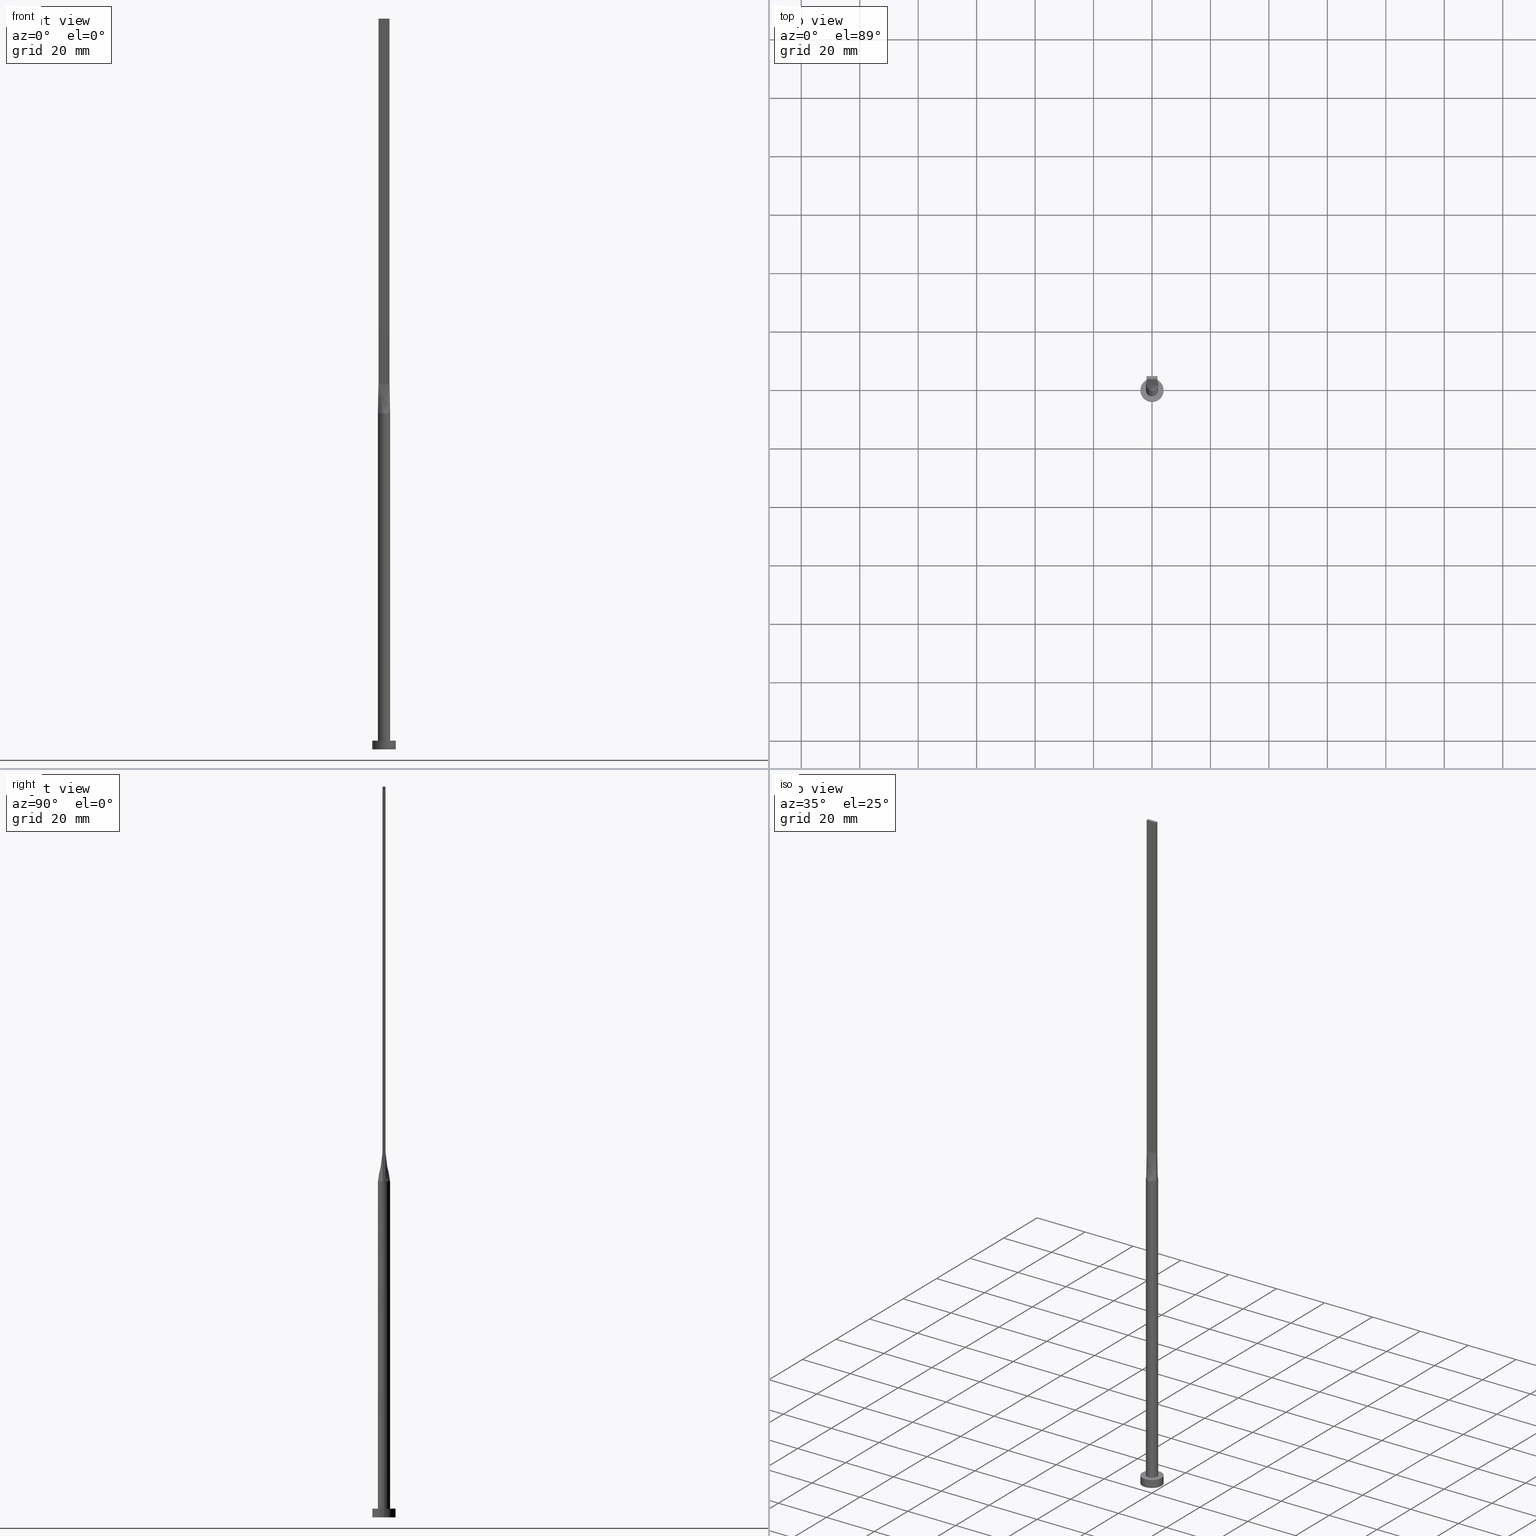
[diagram: canonical four-view strip — front | top / right | iso, engineering-drawing reading convention]
A machine part, canonical four-view strip (front | top / right | iso — engineering-drawing reading convention). The complete STEP part file that produces these views, byte-faithful:
ISO-10303-21;
HEADER;
FILE_DESCRIPTION (( 'STEP AP203' ),
    '1' );
FILE_NAME ('43e1.STEP',
    '2023-02-13T13:21:09',
    ( '' ),
    ( '' ),
    'SwSTEP 2.0',
    'SolidWorks 2019',
    '' );
FILE_SCHEMA (( 'CONFIG_CONTROL_DESIGN' ));
ENDSEC;

DATA;
#1 = CARTESIAN_POINT ( 'NONE',  ( -1.899999999999999911, -0.4999999999999995559, 250.0000000000000000 ) ) ;
#2 = LOCAL_TIME ( 14, 21, 9.000000000000000000, #46 ) ;
#3 = CARTESIAN_POINT ( 'NONE',  ( 0.000000000000000000, 0.000000000000000000, 0.000000000000000000 ) ) ;
#4 = CARTESIAN_POINT ( 'NONE',  ( 1.583333333333333037, -0.4999999999999997780, 125.0000000000000000 ) ) ;
#5 = CARTESIAN_POINT ( 'NONE',  ( 1.965428264125778535, 0.5172179642436265379, 120.0000000000000000 ) ) ;
#6 = CARTESIAN_POINT ( 'NONE',  ( 1.266666666666666829, -0.4999999999999997780, 125.0000000000000000 ) ) ;
#7 = LINE ( 'NONE', #61, #567 ) ;
#8 = DIRECTION ( 'NONE',  ( -1.000000000000000000, 0.000000000000000000, 0.000000000000000000 ) ) ;
#9 = PERSON_AND_ORGANIZATION ( #145, #337 ) ;
#10 = PRODUCT_DEFINITION ( 'NEZN�M�', '', #528, #549 ) ;
#11 = CARTESIAN_POINT ( 'NONE',  ( -0.2698109971861040179, 2.100000000000000089, 115.0000000000000000 ) ) ;
#12 = CARTESIAN_POINT ( 'NONE',  ( -1.899999999999999689, 0.5000000000000002220, 125.0000000000000000 ) ) ;
#13 = COORDINATED_UNIVERSAL_TIME_OFFSET ( 1, 0, .AHEAD. ) ;
#14 = PERSON_AND_ORGANIZATION_ROLE ( 'design_supplier' ) ;
#15 = DIRECTION ( 'NONE',  ( 1.000000000000000000, 0.000000000000000000, 0.000000000000000000 ) ) ;
#16 = CARTESIAN_POINT ( 'NONE',  ( -1.899999999999999467, 0.3333333333333335924, 125.0000000000000000 ) ) ;
#17 = CARTESIAN_POINT ( 'NONE',  ( 1.899999999999999467, 0.3333333333333335924, 125.0000000000000000 ) ) ;
#18 = APPLICATION_PROTOCOL_DEFINITION ( 'international standard', 'config_control_design', 1994, #548 ) ;
#19 = PERSON_AND_ORGANIZATION ( #145, #337 ) ;
#20 = ORIENTED_EDGE ( 'NONE', *, *, #344, .T. ) ;
#21 = ORIENTED_EDGE ( 'NONE', *, *, #353, .F. ) ;
#22 = B_SPLINE_SURFACE_WITH_KNOTS ( 'NONE', 3, 1, ( 
 ( #308, #264 ),
 ( #328, #72 ),
 ( #558, #405 ),
 ( #240, #236 ),
 ( #415, #17 ),
 ( #196, #75 ) ),
 .UNSPECIFIED., .F., .F., .F.,
 ( 4, 2, 4 ),
 ( 2, 2 ),
 ( 0.000000000000000000, 0.5000000000000000000, 1.000000000000000000 ),
 ( 0.000000000000000000, 1.000000000000000000 ),
 .UNSPECIFIED. ) ;
#23 = EDGE_LOOP ( 'NONE', ( #112, #20 ) ) ;
#24 = VECTOR ( 'NONE', #455, 1000.000000000000114 ) ;
#25 = CARTESIAN_POINT ( 'NONE',  ( -1.899999999999999689, 0.5000000000000002220, 250.0000000000000000 ) ) ;
#26 = EDGE_CURVE ( 'NONE', #377, #283, #437, .T. ) ;
#27 = CARTESIAN_POINT ( 'NONE',  ( 1.719043754744862040, 1.223020672007445464, 115.0000000000000000 ) ) ;
#28 = ORIENTED_EDGE ( 'NONE', *, *, #457, .T. ) ;
#29 = DIRECTION ( 'NONE',  ( 1.000000000000000000, 0.000000000000000000, 0.000000000000000000 ) ) ;
#30 = CARTESIAN_POINT ( 'NONE',  ( 0.3166666666666674290, -0.4999999999999997780, 125.0000000000000000 ) ) ;
#31 = APPROVAL_PERSON_ORGANIZATION ( #270, #316, #231 ) ;
#32 = EDGE_LOOP ( 'NONE', ( #73, #579 ) ) ;
#33 = AXIS2_PLACEMENT_3D ( 'NONE', #57, #355, #305 ) ;
#34 = EDGE_LOOP ( 'NONE', ( #218, #409, #234, #259 ) ) ;
#35 = CARTESIAN_POINT ( 'NONE',  ( 0.7916666666666664076, 0.5000000000000002220, 125.0000000000000000 ) ) ;
#36 = EDGE_LOOP ( 'NONE', ( #482, #306, #421, #197 ) ) ;
#37 = FACE_OUTER_BOUND ( 'NONE', #170, .T. ) ;
#38 = CARTESIAN_POINT ( 'NONE',  ( -1.920830191244604412, -0.8725264301372614995, 115.0000000000000142 ) ) ;
#39 = CIRCLE ( 'NONE', #90, 4.000000000000000000 ) ;
#40 = CARTESIAN_POINT ( 'NONE',  ( -1.719043754744861596, 1.223020672007445242, 115.0000000000000142 ) ) ;
#41 = EDGE_CURVE ( 'NONE', #80, #233, #300, .T. ) ;
#42 = VECTOR ( 'NONE', #256, 1000.000000000000000 ) ;
#43 = CARTESIAN_POINT ( 'NONE',  ( 1.899999999999999689, 0.5000000000000002220, 250.0000000000000000 ) ) ;
#44 = APPROVAL_ROLE ( '' ) ;
#45 = DIRECTION ( 'NONE',  ( 0.000000000000000000, 0.000000000000000000, 1.000000000000000000 ) ) ;
#46 = COORDINATED_UNIVERSAL_TIME_OFFSET ( 1, 0, .AHEAD. ) ;
#47 = ORIENTED_EDGE ( 'NONE', *, *, #53, .F. ) ;
#48 = CARTESIAN_POINT ( 'NONE',  ( -1.235326090059014836, 1.714395692508636326, 115.0000000000000142 ) ) ;
#49 = APPROVAL_STATUS ( 'not_yet_approved' ) ;
#50 = DIRECTION ( 'NONE',  ( 0.000000000000000000, -0.000000000000000000, -1.000000000000000000 ) ) ;
#51 = ORIENTED_EDGE ( 'NONE', *, *, #513, .F. ) ;
#52 = CARTESIAN_POINT ( 'NONE',  ( 1.719043754744862040, 1.223020672007445464, 115.0000000000000000 ) ) ;
#53 = EDGE_CURVE ( 'NONE', #69, #378, #364, .T. ) ;
#54 = AXIS2_PLACEMENT_3D ( 'NONE', #471, #165, #15 ) ;
#55 = ORIENTED_EDGE ( 'NONE', *, *, #513, .T. ) ;
#56 = DIRECTION ( 'NONE',  ( 0.01308445504626046078, -0.003443277643752735376, 0.9999084662483913588 ) ) ;
#57 = CARTESIAN_POINT ( 'NONE',  ( 0.000000000000000000, 0.000000000000000000, 3.000000000000000000 ) ) ;
#58 = B_SPLINE_SURFACE_WITH_KNOTS ( 'NONE', 3, 1, ( 
 ( #254, #173 ),
 ( #298, #429 ),
 ( #38, #436 ),
 ( #526, #342 ),
 ( #391, #431 ),
 ( #133, #301 ),
 ( #214, #339 ),
 ( #566, #160 ),
 ( #121, #285 ),
 ( #470, #79 ),
 ( #424, #30 ),
 ( #204, #386 ),
 ( #573, #164 ),
 ( #520, #95 ),
 ( #174, #6 ),
 ( #180, #4 ),
 ( #535, #307 ),
 ( #143, #444 ) ),
 .UNSPECIFIED., .F., .F., .F.,
 ( 4, 2, 2, 2, 2, 2, 2, 2, 4 ),
 ( 2, 2 ),
 ( 0.000000000000000000, 0.1250000000000000555, 0.2500000000000001665, 0.3750000000000002776, 0.5000000000000003331, 0.6250000000000002220, 0.7500000000000002220, 0.8750000000000001110, 1.000000000000000000 ),
 ( 0.000000000000000000, 1.000000000000000000 ),
 .UNSPECIFIED. ) ;
#59 = ADVANCED_BREP_SHAPE_REPRESENTATION ( '43e1', ( #420, #347 ), #474 ) ;
#60 = CARTESIAN_POINT ( 'NONE',  ( 1.235326090059014614, 1.714395692508636770, 115.0000000000000711 ) ) ;
#61 = CARTESIAN_POINT ( 'NONE',  ( 4.000000000000000000, 4.898587196589412829E-16, 3.000000000000000000 ) ) ;
#62 = APPROVAL_DATE_TIME ( #533, #525 ) ;
#63 = AXIS2_PLACEMENT_3D ( 'NONE', #169, #346, #504 ) ;
#64 = EDGE_CURVE ( 'NONE', #377, #408, #119, .T. ) ;
#65 = CALENDAR_DATE ( 2023, 13, 2 ) ;
#66 = DIRECTION ( 'NONE',  ( 0.000000000000000000, 0.000000000000000000, 1.000000000000000000 ) ) ;
#67 = APPROVAL_ROLE ( '' ) ;
#68 = B_SPLINE_SURFACE_WITH_KNOTS ( 'NONE', 3, 1, ( 
 ( #276, #560 ),
 ( #345, #249 ),
 ( #162, #414 ),
 ( #27, #195 ),
 ( #81, #428 ),
 ( #522, #35 ),
 ( #128, #156 ),
 ( #207, #332 ),
 ( #291, #235 ),
 ( #410, #511 ),
 ( #89, #86 ),
 ( #296, #255 ),
 ( #479, #88 ),
 ( #171, #257 ),
 ( #40, #371 ),
 ( #293, #539 ),
 ( #370, #551 ),
 ( #376, #12 ) ),
 .UNSPECIFIED., .F., .F., .F.,
 ( 4, 2, 2, 2, 2, 2, 2, 2, 4 ),
 ( 2, 2 ),
 ( 0.000000000000000000, 0.1250000000000000278, 0.2500000000000000555, 0.3750000000000001110, 0.5000000000000000000, 0.6250000000000000000, 0.7500000000000000000, 0.8750000000000001110, 1.000000000000000000 ),
 ( 0.000000000000000000, 1.000000000000000000 ),
 .UNSPECIFIED. ) ;
#69 = VERTEX_POINT ( 'NONE', #135 ) ;
#70 = VERTEX_POINT ( 'NONE', #166 ) ;
#71 = FACE_OUTER_BOUND ( 'NONE', #241, .T. ) ;
#72 = CARTESIAN_POINT ( 'NONE',  ( 1.899999999999999689, -0.3333333333333330373, 125.0000000000000000 ) ) ;
#73 = ORIENTED_EDGE ( 'NONE', *, *, #581, .F. ) ;
#74 = ORIENTED_EDGE ( 'NONE', *, *, #387, .T. ) ;
#75 = CARTESIAN_POINT ( 'NONE',  ( 1.899999999999999689, 0.5000000000000002220, 125.0000000000000000 ) ) ;
#76 = EDGE_LOOP ( 'NONE', ( #191, #338, #369, #28 ) ) ;
#77 = ORIENTED_EDGE ( 'NONE', *, *, #103, .F. ) ;
#78 = ADVANCED_FACE ( 'NONE', ( #126 ), #442, .T. ) ;
#79 = CARTESIAN_POINT ( 'NONE',  ( 0.1583333333333338533, -0.4999999999999997780, 125.0000000000000000 ) ) ;
#80 = VERTEX_POINT ( 'NONE', #186 ) ;
#81 = CARTESIAN_POINT ( 'NONE',  ( 1.583604922800830428, 1.399063468093436624, 115.0000000000000000 ) ) ;
#82 = CARTESIAN_POINT ( 'NONE',  ( -1.899999999999999689, 0.5000000000000002220, 250.0000000000000000 ) ) ;
#83 = PRODUCT_RELATED_PRODUCT_CATEGORY ( 'detail', '', ( #536 ) ) ;
#84 = AXIS2_PLACEMENT_3D ( 'NONE', #93, #392, #490 ) ;
#85 = AXIS2_PLACEMENT_3D ( 'NONE', #491, #97, #359 ) ;
#86 = CARTESIAN_POINT ( 'NONE',  ( -0.3166666666666663743, 0.5000000000000002220, 125.0000000000000000 ) ) ;
#87 = ORIENTED_EDGE ( 'NONE', *, *, #506, .T. ) ;
#88 = CARTESIAN_POINT ( 'NONE',  ( -0.7916666666666664076, 0.5000000000000002220, 125.0000000000000000 ) ) ;
#89 = CARTESIAN_POINT ( 'NONE',  ( -0.5389299406762299016, 2.046272663899431965, 115.0000000000000142 ) ) ;
#90 = AXIS2_PLACEMENT_3D ( 'NONE', #556, #116, #29 ) ;
#91 = CARTESIAN_POINT ( 'NONE',  ( 0.2698109971861041290, 2.100000000000000089, 115.0000000000000142 ) ) ;
#92 = ADVANCED_FACE ( 'NONE', ( #144 ), #223, .T. ) ;
#93 = CARTESIAN_POINT ( 'NONE',  ( 0.000000000000000000, 0.000000000000000000, 3.000000000000000000 ) ) ;
#94 = CARTESIAN_POINT ( 'NONE',  ( -2.031019593402089818, 0.5344793603115657321, 115.0000000000000000 ) ) ;
#95 = CARTESIAN_POINT ( 'NONE',  ( 1.108333333333333837, -0.4999999999999997780, 125.0000000000000000 ) ) ;
#96 = CC_DESIGN_DATE_AND_TIME_ASSIGNMENT ( #557, #360, ( #10 ) ) ;
#97 = DIRECTION ( 'NONE',  ( 0.000000000000000000, 0.000000000000000000, 1.000000000000000000 ) ) ;
#98 = SECURITY_CLASSIFICATION ( '', '', #537 ) ;
#99 = CYLINDRICAL_SURFACE ( 'NONE', #292, 4.000000000000000000 ) ;
#100 = CARTESIAN_POINT ( 'NONE',  ( 2.031027953490633031, -0.5344816358097418396, 115.0000000000000000 ) ) ;
#101 = FACE_OUTER_BOUND ( 'NONE', #430, .T. ) ;
#102 = APPROVAL_STATUS ( 'not_yet_approved' ) ;
#103 = EDGE_CURVE ( 'NONE', #233, #440, #226, .T. ) ;
#104 = DIRECTION ( 'NONE',  ( -0.000000000000000000, -0.000000000000000000, -1.000000000000000000 ) ) ;
#105 = FACE_OUTER_BOUND ( 'NONE', #253, .T. ) ;
#106 = APPROVAL_DATE_TIME ( #184, #316 ) ;
#107 = VECTOR ( 'NONE', #139, 1000.000000000000000 ) ;
#108 = AXIS2_PLACEMENT_3D ( 'NONE', #515, #193, #375 ) ;
#109 = VECTOR ( 'NONE', #494, 1000.000000000000000 ) ;
#110 = EDGE_CURVE ( 'NONE', #248, #440, #496, .T. ) ;
#111 = ORIENTED_EDGE ( 'NONE', *, *, #289, .F. ) ;
#112 = ORIENTED_EDGE ( 'NONE', *, *, #64, .T. ) ;
#113 = CARTESIAN_POINT ( 'NONE',  ( -1.899999999999999689, 0.5000000000000002220, 125.0000000000000000 ) ) ;
#114 = CARTESIAN_POINT ( 'NONE',  ( 0.000000000000000000, 0.000000000000000000, 115.0000000000000000 ) ) ;
#115 = ORIENTED_EDGE ( 'NONE', *, *, #353, .T. ) ;
#116 = DIRECTION ( 'NONE',  ( 0.000000000000000000, 0.000000000000000000, 1.000000000000000000 ) ) ;
#117 = PLANE ( 'NONE',  #500 ) ;
#118 = VECTOR ( 'NONE', #286, 1000.000000000000000 ) ;
#119 = CIRCLE ( 'NONE', #385, 4.000000000000000000 ) ;
#120 = ORIENTED_EDGE ( 'NONE', *, *, #41, .F. ) ;
#121 = CARTESIAN_POINT ( 'NONE',  ( -0.2698109971861053502, -2.100000000000000089, 115.0000000000000284 ) ) ;
#122 = ORIENTED_EDGE ( 'NONE', *, *, #110, .F. ) ;
#123 = CC_DESIGN_DATE_AND_TIME_ASSIGNMENT ( #363, #449, ( #98 ) ) ;
#124 = CARTESIAN_POINT ( 'NONE',  ( 1.899999999999999689, 0.5000000000000002220, 125.0000000000000000 ) ) ;
#125 = CARTESIAN_POINT ( 'NONE',  ( -1.899999999999999689, 0.5000000000000002220, 250.0000000000000000 ) ) ;
#126 = FACE_OUTER_BOUND ( 'NONE', #36, .T. ) ;
#127 = ORIENTED_EDGE ( 'NONE', *, *, #53, .T. ) ;
#128 = CARTESIAN_POINT ( 'NONE',  ( 1.021961681204346606, 1.852908961101259244, 115.0000000000000284 ) ) ;
#129 = AXIS2_PLACEMENT_3D ( 'NONE', #507, #454, #499 ) ;
#130 = VECTOR ( 'NONE', #529, 1000.000000000000000 ) ;
#131 = ORIENTED_EDGE ( 'NONE', *, *, #348, .T. ) ;
#132 = ORIENTED_EDGE ( 'NONE', *, *, #279, .F. ) ;
#133 = CARTESIAN_POINT ( 'NONE',  ( -1.235326090059015725, -1.714395692508636104, 114.9999999999999432 ) ) ;
#134 = CARTESIAN_POINT ( 'NONE',  ( 1.987786580065029174, 0.6981017315960605929, 115.0000000000000142 ) ) ;
#135 = CARTESIAN_POINT ( 'NONE',  ( -2.100000000000000089, -1.080980291041873360E-16, 115.0000000000000142 ) ) ;
#136 = APPROVAL_PERSON_ORGANIZATION ( #546, #273, #44 ) ;
#137 = ADVANCED_FACE ( 'NONE', ( #101 ), #452, .F. ) ;
#138 = PLANE ( 'NONE',  #397 ) ;
#139 = DIRECTION ( 'NONE',  ( 1.000000000000000000, -5.706327223607920020E-17, 0.000000000000000000 ) ) ;
#140 = DIRECTION ( 'NONE',  ( 0.000000000000000000, 0.000000000000000000, 1.000000000000000000 ) ) ;
#141 = LINE ( 'NONE', #448, #398 ) ;
#142 = PERSON_AND_ORGANIZATION ( #145, #337 ) ;
#143 = CARTESIAN_POINT ( 'NONE',  ( 2.030856528251557158, -0.5344359284872526317, 115.0000000000000000 ) ) ;
#144 = FACE_OUTER_BOUND ( 'NONE', #287, .T. ) ;
#145 = PERSON ( 'NEUR�EN�', 'NEUR�EN�', 'NEUR�EN�', ('NEUR�EN�'), ('NEUR�EN�'), ('NEUR�EN�') ) ;
#146 = CARTESIAN_POINT ( 'NONE',  ( -2.100000000000000089, 0.1811271572287804221, 115.0000000000000142 ) ) ;
#147 =( LENGTH_UNIT ( ) NAMED_UNIT ( * ) SI_UNIT ( .MILLI., .METRE. ) );
#148 = ORIENTED_EDGE ( 'NONE', *, *, #271, .T. ) ;
#149 = CIRCLE ( 'NONE', #54, 2.100000000000000089 ) ;
#150 = DIRECTION ( 'NONE',  ( -0.000000000000000000, -0.000000000000000000, -1.000000000000000000 ) ) ;
#151 = DIRECTION ( 'NONE',  ( 1.000000000000000000, 0.000000000000000000, -0.000000000000000000 ) ) ;
#152 = DIRECTION ( 'NONE',  ( 1.000000000000000000, 0.000000000000000000, 0.000000000000000000 ) ) ;
#153 = ORIENTED_EDGE ( 'NONE', *, *, #208, .T. ) ;
#154 = EDGE_CURVE ( 'NONE', #80, #481, #532, .T. ) ;
#155 = LINE ( 'NONE', #516, #118 ) ;
#156 = CARTESIAN_POINT ( 'NONE',  ( 0.6333333333333330817, 0.5000000000000002220, 125.0000000000000000 ) ) ;
#157 = VERTEX_POINT ( 'NONE', #100 ) ;
#158 = CARTESIAN_POINT ( 'NONE',  ( -2.100000000000000977, -0.1811271572287798393, 115.0000000000000284 ) ) ;
#159 = CIRCLE ( 'NONE', #129, 2.100000000000000089 ) ;
#160 = CARTESIAN_POINT ( 'NONE',  ( -0.3166666666666655972, -0.4999999999999997780, 125.0000000000000000 ) ) ;
#161 = ORIENTED_EDGE ( 'NONE', *, *, #523, .T. ) ;
#162 = CARTESIAN_POINT ( 'NONE',  ( 1.920830191244603746, 0.8725264301372623876, 115.0000000000000142 ) ) ;
#163 = APPLICATION_CONTEXT ( 'configuration controlled 3d designs of mechanical parts and assemblies' ) ;
#164 = CARTESIAN_POINT ( 'NONE',  ( 0.7916666666666675178, -0.4999999999999997780, 125.0000000000000000 ) ) ;
#165 = DIRECTION ( 'NONE',  ( 0.000000000000000000, 0.000000000000000000, 1.000000000000000000 ) ) ;
#166 = CARTESIAN_POINT ( 'NONE',  ( -1.899999999999999911, -0.4999999999999995559, 250.0000000000000000 ) ) ;
#167 = DIRECTION ( 'NONE',  ( 0.000000000000000000, 0.000000000000000000, 1.000000000000000000 ) ) ;
#168 = ADVANCED_FACE ( 'NONE', ( #396 ), #530, .F. ) ;
#169 = CARTESIAN_POINT ( 'NONE',  ( 0.000000000000000000, 0.000000000000000000, 115.0000000000000000 ) ) ;
#170 = EDGE_LOOP ( 'NONE', ( #55, #161, #517, #383 ) ) ;
#171 = CARTESIAN_POINT ( 'NONE',  ( -1.583604922800830428, 1.399063468093436402, 114.9999999999999858 ) ) ;
#172 = DIRECTION ( 'NONE',  ( -0.000000000000000000, -0.000000000000000000, -1.000000000000000000 ) ) ;
#173 = CARTESIAN_POINT ( 'NONE',  ( -1.899999999999999911, -0.4999999999999995559, 125.0000000000000000 ) ) ;
#174 = CARTESIAN_POINT ( 'NONE',  ( 1.719043754744861374, -1.223020672007445908, 115.0000000000000284 ) ) ;
#175 = ORIENTED_EDGE ( 'NONE', *, *, #154, .T. ) ;
#176 = FACE_OUTER_BOUND ( 'NONE', #372, .T. ) ;
#177 = CARTESIAN_POINT ( 'NONE',  ( 0.000000000000000000, 0.000000000000000000, 115.0000000000000000 ) ) ;
#178 = AXIS2_PLACEMENT_3D ( 'NONE', #456, #278, #299 ) ;
#179 = VECTOR ( 'NONE', #188, 1000.000000000000114 ) ;
#180 = CARTESIAN_POINT ( 'NONE',  ( 1.920830191244603302, -0.8725264301372632758, 115.0000000000000568 ) ) ;
#181 = CARTESIAN_POINT ( 'NONE',  ( 1.899999999999999689, 0.5000000000000002220, 250.0000000000000000 ) ) ;
#182 = COORDINATED_UNIVERSAL_TIME_OFFSET ( 1, 0, .AHEAD. ) ;
#183 = CARTESIAN_POINT ( 'NONE',  ( 1.899999999999999023, -0.4999999999999997780, 125.0000000000000000 ) ) ;
#184 = DATE_AND_TIME ( #356, #212 ) ;
#185 = CARTESIAN_POINT ( 'NONE',  ( -1.021961681204346384, 1.852908961101259022, 115.0000000000000000 ) ) ;
#186 = CARTESIAN_POINT ( 'NONE',  ( 1.899999999999999023, -0.4999999999999997780, 250.0000000000000000 ) ) ;
#187 = VECTOR ( 'NONE', #172, 1000.000000000000000 ) ;
#188 = DIRECTION ( 'NONE',  ( -0.01308445504626046078, -0.003443277643752800429, 0.9999084662483913588 ) ) ;
#189 = CALENDAR_DATE ( 2023, 13, 2 ) ;
#190 = LINE ( 'NONE', #545, #24 ) ;
#191 = ORIENTED_EDGE ( 'NONE', *, *, #467, .T. ) ;
#192 = CC_DESIGN_PERSON_AND_ORGANIZATION_ASSIGNMENT ( #205, #461, ( #10 ) ) ;
#193 = DIRECTION ( 'NONE',  ( 0.000000000000000000, 0.000000000000000000, 1.000000000000000000 ) ) ;
#194 = AXIS2_PLACEMENT_3D ( 'NONE', #177, #263, #219 ) ;
#195 = CARTESIAN_POINT ( 'NONE',  ( 1.266666666666666607, 0.5000000000000002220, 125.0000000000000000 ) ) ;
#196 = CARTESIAN_POINT ( 'NONE',  ( 2.030856528251557602, 0.5344359284872527427, 115.0000000000000000 ) ) ;
#197 = ORIENTED_EDGE ( 'NONE', *, *, #380, .T. ) ;
#198 = CARTESIAN_POINT ( 'NONE',  ( -1.987786580065029174, 0.6981017315960602598, 115.0000000000000142 ) ) ;
#199 = EDGE_LOOP ( 'NONE', ( #131, #508, #282, #122 ) ) ;
#200 = FACE_BOUND ( 'NONE', #32, .T. ) ;
#201 = CARTESIAN_POINT ( 'NONE',  ( -1.899999999999999689, -0.3333333333333328707, 125.0000000000000000 ) ) ;
#202 = LOCAL_TIME ( 14, 21, 9.000000000000000000, #13 ) ;
#203 = CARTESIAN_POINT ( 'NONE',  ( -1.899999999999999911, -0.4999999999999995559, 250.0000000000000000 ) ) ;
#204 = CARTESIAN_POINT ( 'NONE',  ( 1.021961681204344830, -1.852908961101259910, 115.0000000000000000 ) ) ;
#205 = PERSON_AND_ORGANIZATION ( #145, #337 ) ;
#206 = ORIENTED_EDGE ( 'NONE', *, *, #575, .T. ) ;
#207 = CARTESIAN_POINT ( 'NONE',  ( 0.5389299406762297906, 2.046272663899431077, 115.0000000000000284 ) ) ;
#208 = EDGE_CURVE ( 'NONE', #340, #248, #327, .T. ) ;
#209 = DIRECTION ( 'NONE',  ( -2.168404344971009361E-16, -1.000000000000000000, 0.000000000000000000 ) ) ;
#210 = PERSON_AND_ORGANIZATION ( #145, #337 ) ;
#211 = CARTESIAN_POINT ( 'NONE',  ( -4.000000000000000000, 0.000000000000000000, 3.000000000000000000 ) ) ;
#212 = LOCAL_TIME ( 14, 21, 9.000000000000000000, #447 ) ;
#213 = ORIENTED_EDGE ( 'NONE', *, *, #279, .T. ) ;
#214 = CARTESIAN_POINT ( 'NONE',  ( -1.021961681204347050, -1.852908961101258578, 115.0000000000000000 ) ) ;
#215 = COORDINATED_UNIVERSAL_TIME_OFFSET ( 1, 0, .AHEAD. ) ;
#216 = DIRECTION ( 'NONE',  ( 1.000000000000000000, 0.000000000000000000, 0.000000000000000000 ) ) ;
#217 = LINE ( 'NONE', #309, #412 ) ;
#218 = ORIENTED_EDGE ( 'NONE', *, *, #344, .F. ) ;
#219 = DIRECTION ( 'NONE',  ( 1.000000000000000000, 0.000000000000000000, 0.000000000000000000 ) ) ;
#220 = CC_DESIGN_PERSON_AND_ORGANIZATION_ASSIGNMENT ( #142, #401, ( #98 ) ) ;
#221 = CALENDAR_DATE ( 2023, 13, 2 ) ;
#222 = CARTESIAN_POINT ( 'NONE',  ( 0.000000000000000000, 0.000000000000000000, 250.0000000000000000 ) ) ;
#223 = CYLINDRICAL_SURFACE ( 'NONE', #476, 2.100000000000000089 ) ;
#224 = AXIS2_PLACEMENT_3D ( 'NONE', #114, #150, #277 ) ;
#225 = CARTESIAN_POINT ( 'NONE',  ( -1.899999999999999689, 0.5000000000000002220, 125.0000000000000000 ) ) ;
#226 = LINE ( 'NONE', #320, #109 ) ;
#227 = UNCERTAINTY_MEASURE_WITH_UNIT (LENGTH_MEASURE( 1.000000000000000082E-05 ), #147, 'distance_accuracy_value', 'NONE');
#228 = CARTESIAN_POINT ( 'NONE',  ( 2.100000000000000089, 3.372022381799045987E-17, 115.0000000000000000 ) ) ;
#229 = VECTOR ( 'NONE', #468, 1000.000000000000000 ) ;
#230 = CARTESIAN_POINT ( 'NONE',  ( -2.030856528251557602, 0.5344359284872521876, 115.0000000000000000 ) ) ;
#231 = APPROVAL_ROLE ( '' ) ;
#232 = ORIENTED_EDGE ( 'NONE', *, *, #289, .T. ) ;
#233 = VERTEX_POINT ( 'NONE', #183 ) ;
#234 = ORIENTED_EDGE ( 'NONE', *, *, #493, .T. ) ;
#235 = CARTESIAN_POINT ( 'NONE',  ( 0.1583333333333334370, 0.5000000000000002220, 125.0000000000000000 ) ) ;
#236 = CARTESIAN_POINT ( 'NONE',  ( 1.899999999999999467, 0.1666666666666669905, 125.0000000000000000 ) ) ;
#237 = ORIENTED_EDGE ( 'NONE', *, *, #562, .T. ) ;
#238 = LINE ( 'NONE', #475, #229 ) ;
#239 = CC_DESIGN_APPROVAL ( #273, ( #10 ) ) ;
#240 = CARTESIAN_POINT ( 'NONE',  ( 2.100000000000000089, 0.1811271572287802556, 114.9999999999999858 ) ) ;
#241 = EDGE_LOOP ( 'NONE', ( #434, #466, #569, #336 ) ) ;
#242 = ORIENTED_EDGE ( 'NONE', *, *, #480, .F. ) ;
#243 = ADVANCED_FACE ( 'NONE', ( #268 ), #22, .T. ) ;
#244 = DIRECTION ( 'NONE',  ( -6.505213034913026604E-16, -1.000000000000000000, 0.000000000000000000 ) ) ;
#245 = CARTESIAN_POINT ( 'NONE',  ( -1.899999999999999467, 0.1666666666666670182, 125.0000000000000000 ) ) ;
#246 = VERTEX_POINT ( 'NONE', #368 ) ;
#247 = CARTESIAN_POINT ( 'NONE',  ( 1.899999999999999023, -0.4999999999999997780, 250.0000000000000000 ) ) ;
#248 = VERTEX_POINT ( 'NONE', #501 ) ;
#249 = CARTESIAN_POINT ( 'NONE',  ( 1.741666666666666474, 0.5000000000000002220, 125.0000000000000000 ) ) ;
#250 = DIRECTION ( 'NONE',  ( -2.168404344971009361E-16, -1.000000000000000000, 0.000000000000000000 ) ) ;
#251 = CC_DESIGN_SECURITY_CLASSIFICATION ( #98, ( #528 ) ) ;
#252 = ORIENTED_EDGE ( 'NONE', *, *, #457, .F. ) ;
#253 = EDGE_LOOP ( 'NONE', ( #232, #127, #325, #518, #568 ) ) ;
#254 = CARTESIAN_POINT ( 'NONE',  ( -2.030856528251558046, -0.5344359284872515214, 115.0000000000000000 ) ) ;
#255 = CARTESIAN_POINT ( 'NONE',  ( -0.6333333333333329707, 0.5000000000000002220, 125.0000000000000000 ) ) ;
#256 = DIRECTION ( 'NONE',  ( -0.000000000000000000, -0.000000000000000000, -1.000000000000000000 ) ) ;
#257 = CARTESIAN_POINT ( 'NONE',  ( -1.108333333333333171, 0.5000000000000002220, 125.0000000000000000 ) ) ;
#258 = AXIS2_PLACEMENT_3D ( 'NONE', #3, #140, #489 ) ;
#259 = ORIENTED_EDGE ( 'NONE', *, *, #26, .F. ) ;
#260 = ADVANCED_FACE ( 'NONE', ( #37 ), #58, .T. ) ;
#261 = LINE ( 'NONE', #1, #107 ) ;
#262 = DIRECTION ( 'NONE',  ( -1.000000000000000000, 5.706327223607920020E-17, 0.000000000000000000 ) ) ;
#263 = DIRECTION ( 'NONE',  ( 0.000000000000000000, 0.000000000000000000, 1.000000000000000000 ) ) ;
#264 = CARTESIAN_POINT ( 'NONE',  ( 1.899999999999999911, -0.4999999999999997780, 125.0000000000000000 ) ) ;
#265 = VECTOR ( 'NONE', #250, 1000.000000000000000 ) ;
#266 = DIRECTION ( 'NONE',  ( 0.000000000000000000, 0.000000000000000000, 1.000000000000000000 ) ) ;
#267 = CARTESIAN_POINT ( 'NONE',  ( 1.583604922800830428, 1.399063468093436624, 115.0000000000000000 ) ) ;
#268 = FACE_OUTER_BOUND ( 'NONE', #417, .T. ) ;
#269 = EDGE_CURVE ( 'NONE', #503, #381, #141, .T. ) ;
#270 = PERSON_AND_ORGANIZATION ( #145, #337 ) ;
#271 = EDGE_CURVE ( 'NONE', #411, #233, #458, .T. ) ;
#272 = APPROVAL_PERSON_ORGANIZATION ( #210, #525, #67 ) ;
#273 = APPROVAL ( #49, 'NEUR�EN�' ) ;
#274 = CARTESIAN_POINT ( 'NONE',  ( 2.100000000000000089, 2.571758278209441957E-16, 3.000000000000000000 ) ) ;
#275 = APPLICATION_PROTOCOL_DEFINITION ( 'international standard', 'config_control_design', 1994, #163 ) ;
#276 = CARTESIAN_POINT ( 'NONE',  ( 2.030856528251557602, 0.5344359284872521876, 115.0000000000000000 ) ) ;
#277 = DIRECTION ( 'NONE',  ( -1.000000000000000000, 0.000000000000000000, 0.000000000000000000 ) ) ;
#278 = DIRECTION ( 'NONE',  ( 1.000000000000000000, -2.168404344971009361E-16, 0.000000000000000000 ) ) ;
#279 = EDGE_CURVE ( 'NONE', #70, #80, #261, .T. ) ;
#280 = ORIENTED_EDGE ( 'NONE', *, *, #581, .T. ) ;
#281 = CIRCLE ( 'NONE', #63, 2.100000000000000089 ) ;
#282 = ORIENTED_EDGE ( 'NONE', *, *, #387, .F. ) ;
#283 = VERTEX_POINT ( 'NONE', #399 ) ;
#284 = CARTESIAN_POINT ( 'NONE',  ( -1.920830191244604412, 0.8725264301372623876, 115.0000000000000284 ) ) ;
#285 = CARTESIAN_POINT ( 'NONE',  ( -0.1583333333333326598, -0.4999999999999997780, 125.0000000000000000 ) ) ;
#286 = DIRECTION ( 'NONE',  ( -0.000000000000000000, -0.000000000000000000, -1.000000000000000000 ) ) ;
#287 = EDGE_LOOP ( 'NONE', ( #21, #242, #51, #47, #87, #280 ) ) ;
#288 = LINE ( 'NONE', #82, #265 ) ;
#289 = EDGE_CURVE ( 'NONE', #503, #69, #425, .T. ) ;
#290 = ORIENTED_EDGE ( 'NONE', *, *, #480, .T. ) ;
#291 = CARTESIAN_POINT ( 'NONE',  ( 0.2698109971861041290, 2.100000000000000089, 115.0000000000000142 ) ) ;
#292 = AXIS2_PLACEMENT_3D ( 'NONE', #538, #531, #311 ) ;
#293 = CARTESIAN_POINT ( 'NONE',  ( -1.920830191244604412, 0.8725264301372623876, 115.0000000000000284 ) ) ;
#294 = AXIS2_PLACEMENT_3D ( 'NONE', #181, #485, #50 ) ;
#295 = DIRECTION ( 'NONE',  ( -0.000000000000000000, -0.000000000000000000, -1.000000000000000000 ) ) ;
#296 = CARTESIAN_POINT ( 'NONE',  ( -1.021961681204346384, 1.852908961101259022, 115.0000000000000000 ) ) ;
#297 = DATE_AND_TIME ( #221, #483 ) ;
#298 = CARTESIAN_POINT ( 'NONE',  ( -1.987786580065029840, -0.6981017315960599268, 115.0000000000000142 ) ) ;
#299 = DIRECTION ( 'NONE',  ( 2.168404344971009361E-16, 1.000000000000000000, 0.000000000000000000 ) ) ;
#300 = LINE ( 'NONE', #247, #42 ) ;
#301 = CARTESIAN_POINT ( 'NONE',  ( -0.7916666666666655194, -0.4999999999999995559, 125.0000000000000000 ) ) ;
#302 = ORIENTED_EDGE ( 'NONE', *, *, #450, .T. ) ;
#303 = AXIS2_PLACEMENT_3D ( 'NONE', #505, #66, #487 ) ;
#304 = CARTESIAN_POINT ( 'NONE',  ( 1.920830191244603746, 0.8725264301372623876, 115.0000000000000142 ) ) ;
#305 = DIRECTION ( 'NONE',  ( -1.000000000000000000, 0.000000000000000000, 0.000000000000000000 ) ) ;
#306 = ORIENTED_EDGE ( 'NONE', *, *, #64, .F. ) ;
#307 = CARTESIAN_POINT ( 'NONE',  ( 1.741666666666666030, -0.4999999999999997780, 125.0000000000000000 ) ) ;
#308 = CARTESIAN_POINT ( 'NONE',  ( 2.030856528251557158, -0.5344359284872530758, 115.0000000000000000 ) ) ;
#309 = CARTESIAN_POINT ( 'NONE',  ( 1.899999999999999689, 0.5000000000000002220, 250.0000000000000000 ) ) ;
#310 = EDGE_CURVE ( 'NONE', #411, #378, #354, .T. ) ;
#311 = DIRECTION ( 'NONE',  ( -1.000000000000000000, 0.000000000000000000, 0.000000000000000000 ) ) ;
#312 = DIRECTION ( 'NONE',  ( 6.505213034913026604E-16, 1.000000000000000000, 0.000000000000000000 ) ) ;
#313 = B_SPLINE_CURVE_WITH_KNOTS ( 'NONE', 3,
 ( #350, #134, #304, #52, #267, #60, #402, #484, #91, #11, #439, #185, #48, #395, #473, #284, #198, #422 ),
 .UNSPECIFIED., .F., .F.,
 ( 4, 2, 2, 2, 2, 2, 2, 2, 4 ),
 ( 0.000000000000000000, 0.1250000000000000278, 0.2500000000000000555, 0.3750000000000001110, 0.5000000000000000000, 0.6250000000000000000, 0.7500000000000000000, 0.8750000000000001110, 1.000000000000000000 ),
 .UNSPECIFIED. ) ;
#314 = B_SPLINE_SURFACE_WITH_KNOTS ( 'NONE', 3, 1, ( 
 ( #230, #367 ),
 ( #404, #16 ),
 ( #146, #245 ),
 ( #158, #419 ),
 ( #469, #201 ),
 ( #384, #572 ) ),
 .UNSPECIFIED., .F., .F., .F.,
 ( 4, 2, 4 ),
 ( 2, 2 ),
 ( 0.000000000000000000, 0.5000000000000000000, 1.000000000000000000 ),
 ( 0.000000000000000000, 1.000000000000000000 ),
 .UNSPECIFIED. ) ;
#315 = CARTESIAN_POINT ( 'NONE',  ( -1.965428264125778979, -0.5172179642436255387, 120.0000000000000000 ) ) ;
#316 = APPROVAL ( #102, 'NEUR�EN�' ) ;
#317 = DIRECTION ( 'NONE',  ( -0.000000000000000000, -0.000000000000000000, -1.000000000000000000 ) ) ;
#318 = CARTESIAN_POINT ( 'NONE',  ( 0.000000000000000000, 0.000000000000000000, 115.0000000000000000 ) ) ;
#319 = PLANE ( 'NONE',  #178 ) ;
#320 = CARTESIAN_POINT ( 'NONE',  ( 1.899999999999999689, 0.5000000000000002220, 125.0000000000000000 ) ) ;
#321 = ADVANCED_FACE ( 'NONE', ( #441 ), #99, .T. ) ;
#322 = PERSON_AND_ORGANIZATION_ROLE ( 'design_owner' ) ;
#323 = EDGE_CURVE ( 'NONE', #427, #246, #324, .T. ) ;
#324 = CIRCLE ( 'NONE', #303, 2.100000000000000089 ) ;
#325 = ORIENTED_EDGE ( 'NONE', *, *, #310, .F. ) ;
#326 = CARTESIAN_POINT ( 'NONE',  ( -1.899999999999999911, -0.4999999999999995559, 125.0000000000000000 ) ) ;
#327 = CIRCLE ( 'NONE', #85, 2.100000000000000089 ) ;
#328 = CARTESIAN_POINT ( 'NONE',  ( 2.076193315816324603, -0.3621561357411388626, 114.9999999999999858 ) ) ;
#329 = APPROVAL_STATUS ( 'not_yet_approved' ) ;
#330 = ORIENTED_EDGE ( 'NONE', *, *, #380, .F. ) ;
#331 = CARTESIAN_POINT ( 'NONE',  ( 1.899999999999999023, -0.4999999999999997780, 250.0000000000000000 ) ) ;
#332 = CARTESIAN_POINT ( 'NONE',  ( 0.3166666666666665964, 0.5000000000000002220, 125.0000000000000000 ) ) ;
#333 =( NAMED_UNIT ( * ) PLANE_ANGLE_UNIT ( ) SI_UNIT ( $, .RADIAN. ) );
#334 = PRODUCT_DEFINITION_SHAPE ( 'NONE', 'NONE',  #10 ) ;
#335 = LINE ( 'NONE', #203, #187 ) ;
#336 = ORIENTED_EDGE ( 'NONE', *, *, #41, .T. ) ;
#337 = ORGANIZATION ( 'NEUR�EN�', 'NEUR�EN�', '' ) ;
#338 = ORIENTED_EDGE ( 'NONE', *, *, #562, .F. ) ;
#339 = CARTESIAN_POINT ( 'NONE',  ( -0.6333333333333320825, -0.4999999999999996669, 125.0000000000000000 ) ) ;
#340 = VERTEX_POINT ( 'NONE', #228 ) ;
#341 = FACE_OUTER_BOUND ( 'NONE', #23, .T. ) ;
#342 = CARTESIAN_POINT ( 'NONE',  ( -1.266666666666665941, -0.4999999999999995559, 125.0000000000000000 ) ) ;
#343 = ORIENTED_EDGE ( 'NONE', *, *, #547, .T. ) ;
#344 = EDGE_CURVE ( 'NONE', #408, #377, #512, .T. ) ;
#345 = CARTESIAN_POINT ( 'NONE',  ( 1.987786580065029174, 0.6981017315960605929, 115.0000000000000142 ) ) ;
#346 = DIRECTION ( 'NONE',  ( 0.000000000000000000, 0.000000000000000000, 1.000000000000000000 ) ) ;
#347 = AXIS2_PLACEMENT_3D ( 'NONE', #416, #462, #152 ) ;
#348 = EDGE_CURVE ( 'NONE', #248, #503, #313, .T. ) ;
#349 = ORIENTED_EDGE ( 'NONE', *, *, #348, .F. ) ;
#350 = CARTESIAN_POINT ( 'NONE',  ( 2.030996101999494652, 0.5344731476277209126, 115.0000000000000000 ) ) ;
#351 = DIRECTION ( 'NONE',  ( 1.000000000000000000, 0.000000000000000000, 0.000000000000000000 ) ) ;
#352 = CC_DESIGN_APPROVAL ( #316, ( #98 ) ) ;
#353 = EDGE_CURVE ( 'NONE', #340, #427, #388, .T. ) ;
#354 = LINE ( 'NONE', #315, #492 ) ;
#355 = DIRECTION ( 'NONE',  ( -0.000000000000000000, -0.000000000000000000, -1.000000000000000000 ) ) ;
#356 = CALENDAR_DATE ( 2023, 13, 2 ) ;
#357 = ADVANCED_FACE ( 'NONE', ( #71 ), #576, .F. ) ;
#358 = LINE ( 'NONE', #225, #552 ) ;
#359 = DIRECTION ( 'NONE',  ( 1.000000000000000000, 0.000000000000000000, 0.000000000000000000 ) ) ;
#360 = DATE_TIME_ROLE ( 'creation_date' ) ;
#361 = DIRECTION ( 'NONE',  ( -0.01308445504626048160, -0.003443277643752735376, -0.9999084662483913588 ) ) ;
#362 = VECTOR ( 'NONE', #104, 1000.000000000000000 ) ;
#363 = DATE_AND_TIME ( #189, #578 ) ;
#364 = CIRCLE ( 'NONE', #403, 2.100000000000000089 ) ;
#365 =( NAMED_UNIT ( * ) SI_UNIT ( $, .STERADIAN. ) SOLID_ANGLE_UNIT ( ) );
#366 = PERSON_AND_ORGANIZATION_ROLE ( 'creator' ) ;
#367 = CARTESIAN_POINT ( 'NONE',  ( -1.899999999999999689, 0.5000000000000002220, 125.0000000000000000 ) ) ;
#368 = CARTESIAN_POINT ( 'NONE',  ( -2.100000000000000089, 0.000000000000000000, 3.000000000000000000 ) ) ;
#369 = ORIENTED_EDGE ( 'NONE', *, *, #450, .F. ) ;
#370 = CARTESIAN_POINT ( 'NONE',  ( -1.987786580065029174, 0.6981017315960602598, 115.0000000000000142 ) ) ;
#371 = CARTESIAN_POINT ( 'NONE',  ( -1.266666666666666607, 0.5000000000000002220, 125.0000000000000000 ) ) ;
#372 = EDGE_LOOP ( 'NONE', ( #206, #302, #213, #175 ) ) ;
#373 = CARTESIAN_POINT ( 'NONE',  ( 4.000000000000000000, 4.898587196589412829E-16, 0.000000000000000000 ) ) ;
#374 = EDGE_LOOP ( 'NONE', ( #514, #115, #564, #550, #111, #349 ) ) ;
#375 = DIRECTION ( 'NONE',  ( 1.000000000000000000, 0.000000000000000000, -0.000000000000000000 ) ) ;
#376 = CARTESIAN_POINT ( 'NONE',  ( -2.030856528251557602, 0.5344359284872521876, 115.0000000000000000 ) ) ;
#377 = VERTEX_POINT ( 'NONE', #509 ) ;
#378 = VERTEX_POINT ( 'NONE', #418 ) ;
#379 = CARTESIAN_POINT ( 'NONE',  ( 2.100000000000000089, 2.571758278209441957E-16, 115.0000000000000000 ) ) ;
#380 = EDGE_CURVE ( 'NONE', #283, #574, #39, .T. ) ;
#381 = VERTEX_POINT ( 'NONE', #113 ) ;
#382 = DIRECTION ( 'NONE',  ( -1.000000000000000000, 6.505213034913026604E-16, 0.000000000000000000 ) ) ;
#383 = ORIENTED_EDGE ( 'NONE', *, *, #310, .T. ) ;
#384 = CARTESIAN_POINT ( 'NONE',  ( -2.030856528251558046, -0.5344359284872516325, 115.0000000000000000 ) ) ;
#385 = AXIS2_PLACEMENT_3D ( 'NONE', #393, #477, #351 ) ;
#386 = CARTESIAN_POINT ( 'NONE',  ( 0.6333333333333341919, -0.4999999999999997780, 125.0000000000000000 ) ) ;
#387 = EDGE_CURVE ( 'NONE', #440, #381, #238, .T. ) ;
#388 = LINE ( 'NONE', #379, #453 ) ;
#389 = LINE ( 'NONE', #25, #362 ) ;
#390 = ADVANCED_FACE ( 'NONE', ( #200, #341 ), #565, .T. ) ;
#391 = CARTESIAN_POINT ( 'NONE',  ( -1.583604922800831760, -1.399063468093435958, 114.9999999999999858 ) ) ;
#392 = DIRECTION ( 'NONE',  ( 0.000000000000000000, 0.000000000000000000, 1.000000000000000000 ) ) ;
#393 = CARTESIAN_POINT ( 'NONE',  ( 0.000000000000000000, 0.000000000000000000, 3.000000000000000000 ) ) ;
#394 = DIRECTION ( 'NONE',  ( -1.000000000000000000, 0.000000000000000000, 0.000000000000000000 ) ) ;
#395 = CARTESIAN_POINT ( 'NONE',  ( -1.583604922800830428, 1.399063468093436402, 114.9999999999999858 ) ) ;
#396 = FACE_OUTER_BOUND ( 'NONE', #580, .T. ) ;
#397 = AXIS2_PLACEMENT_3D ( 'NONE', #222, #266, #451 ) ;
#398 = VECTOR ( 'NONE', #56, 1000.000000000000114 ) ;
#399 = CARTESIAN_POINT ( 'NONE',  ( -4.000000000000000000, 0.000000000000000000, 0.000000000000000000 ) ) ;
#400 = DIRECTION ( 'NONE',  ( 5.706327223607920020E-17, 1.000000000000000000, -0.000000000000000000 ) ) ;
#401 = PERSON_AND_ORGANIZATION_ROLE ( 'classification_officer' ) ;
#402 = CARTESIAN_POINT ( 'NONE',  ( 1.021961681204346606, 1.852908961101259244, 115.0000000000000284 ) ) ;
#403 = AXIS2_PLACEMENT_3D ( 'NONE', #433, #45, #216 ) ;
#404 = CARTESIAN_POINT ( 'NONE',  ( -2.076193315816324603, 0.3621561357411381965, 115.0000000000000000 ) ) ;
#405 = CARTESIAN_POINT ( 'NONE',  ( 1.899999999999999689, -0.1666666666666663243, 125.0000000000000000 ) ) ;
#406 = CARTESIAN_POINT ( 'NONE',  ( 4.000000000000000000, 4.898587196589412829E-16, 3.000000000000000000 ) ) ;
#407 = ADVANCED_FACE ( 'NONE', ( #570 ), #68, .T. ) ;
#408 = VERTEX_POINT ( 'NONE', #406 ) ;
#409 = ORIENTED_EDGE ( 'NONE', *, *, #534, .T. ) ;
#410 = CARTESIAN_POINT ( 'NONE',  ( -0.2698109971861040179, 2.100000000000000089, 115.0000000000000000 ) ) ;
#411 = VERTEX_POINT ( 'NONE', #542 ) ;
#412 = VECTOR ( 'NONE', #394, 1000.000000000000000 ) ;
#413 = CC_DESIGN_PERSON_AND_ORGANIZATION_ASSIGNMENT ( #19, #366, ( #528 ) ) ;
#414 = CARTESIAN_POINT ( 'NONE',  ( 1.583333333333333259, 0.5000000000000002220, 125.0000000000000000 ) ) ;
#415 = CARTESIAN_POINT ( 'NONE',  ( 2.076193315816325047, 0.3621561357411385851, 115.0000000000000142 ) ) ;
#416 = CARTESIAN_POINT ( 'NONE',  ( 0.000000000000000000, 0.000000000000000000, 0.000000000000000000 ) ) ;
#417 = EDGE_LOOP ( 'NONE', ( #290, #153, #554, #77, #478 ) ) ;
#418 = CARTESIAN_POINT ( 'NONE',  ( -2.031004407172260162, -0.5344754071304557153, 115.0000000000000000 ) ) ;
#419 = CARTESIAN_POINT ( 'NONE',  ( -1.899999999999999689, -0.1666666666666662411, 125.0000000000000000 ) ) ;
#420 = MANIFOLD_SOLID_BREP ( 'P�idat vysunut�m5', #465 ) ;
#421 = ORIENTED_EDGE ( 'NONE', *, *, #26, .T. ) ;
#422 = CARTESIAN_POINT ( 'NONE',  ( -2.031019593402089818, 0.5344793603115657321, 115.0000000000000000 ) ) ;
#423 = CC_DESIGN_PERSON_AND_ORGANIZATION_ASSIGNMENT ( #495, #322, ( #536 ) ) ;
#424 = CARTESIAN_POINT ( 'NONE',  ( 0.5389299406762287914, -2.046272663899431965, 115.0000000000000284 ) ) ;
#425 = CIRCLE ( 'NONE', #194, 2.100000000000000089 ) ;
#426 = CIRCLE ( 'NONE', #258, 4.000000000000000000 ) ;
#427 = VERTEX_POINT ( 'NONE', #274 ) ;
#428 = CARTESIAN_POINT ( 'NONE',  ( 1.108333333333333171, 0.5000000000000002220, 125.0000000000000000 ) ) ;
#429 = CARTESIAN_POINT ( 'NONE',  ( -1.741666666666666474, -0.4999999999999995559, 125.0000000000000000 ) ) ;
#430 = EDGE_LOOP ( 'NONE', ( #148, #120, #132, #237 ) ) ;
#431 = CARTESIAN_POINT ( 'NONE',  ( -1.108333333333332504, -0.4999999999999995559, 125.0000000000000000 ) ) ;
#432 = ADVANCED_FACE ( 'NONE', ( #498 ), #510, .T. ) ;
#433 = CARTESIAN_POINT ( 'NONE',  ( 0.000000000000000000, 0.000000000000000000, 115.0000000000000000 ) ) ;
#434 = ORIENTED_EDGE ( 'NONE', *, *, #103, .T. ) ;
#435 = VECTOR ( 'NONE', #563, 1000.000000000000000 ) ;
#436 = CARTESIAN_POINT ( 'NONE',  ( -1.583333333333333037, -0.4999999999999995559, 125.0000000000000000 ) ) ;
#437 = LINE ( 'NONE', #211, #446 ) ;
#438 = ADVANCED_FACE ( 'NONE', ( #105 ), #314, .T. ) ;
#439 = CARTESIAN_POINT ( 'NONE',  ( -0.5389299406762299016, 2.046272663899431965, 115.0000000000000142 ) ) ;
#440 = VERTEX_POINT ( 'NONE', #124 ) ;
#441 = FACE_OUTER_BOUND ( 'NONE', #34, .T. ) ;
#442 = CYLINDRICAL_SURFACE ( 'NONE', #33, 4.000000000000000000 ) ;
#443 = CC_DESIGN_APPROVAL ( #525, ( #528 ) ) ;
#444 = CARTESIAN_POINT ( 'NONE',  ( 1.899999999999999023, -0.4999999999999997780, 125.0000000000000000 ) ) ;
#445 = CARTESIAN_POINT ( 'NONE',  ( -1.899999999999999911, -0.4999999999999995559, 250.0000000000000000 ) ) ;
#446 = VECTOR ( 'NONE', #295, 1000.000000000000000 ) ;
#447 = COORDINATED_UNIVERSAL_TIME_OFFSET ( 1, 0, .AHEAD. ) ;
#448 = CARTESIAN_POINT ( 'NONE',  ( -1.965428264125778535, 0.5172179642436262048, 120.0000000000000000 ) ) ;
#449 = DATE_TIME_ROLE ( 'classification_date' ) ;
#450 = EDGE_CURVE ( 'NONE', #463, #70, #288, .T. ) ;
#451 = DIRECTION ( 'NONE',  ( 1.000000000000000000, 0.000000000000000000, -0.000000000000000000 ) ) ;
#452 = PLANE ( 'NONE',  #553 ) ;
#453 = VECTOR ( 'NONE', #464, 1000.000000000000000 ) ;
#454 = DIRECTION ( 'NONE',  ( 0.000000000000000000, 0.000000000000000000, 1.000000000000000000 ) ) ;
#455 = DIRECTION ( 'NONE',  ( -0.01308445504626048160, 0.003443277643752832955, 0.9999084662483913588 ) ) ;
#456 = CARTESIAN_POINT ( 'NONE',  ( -1.899999999999999689, 0.5000000000000002220, 250.0000000000000000 ) ) ;
#457 = EDGE_CURVE ( 'NONE', #463, #381, #389, .T. ) ;
#458 = LINE ( 'NONE', #326, #130 ) ;
#459 = CALENDAR_DATE ( 2023, 13, 2 ) ;
#460 = CC_DESIGN_PERSON_AND_ORGANIZATION_ASSIGNMENT ( #9, #14, ( #528 ) ) ;
#461 = PERSON_AND_ORGANIZATION_ROLE ( 'creator' ) ;
#462 = DIRECTION ( 'NONE',  ( 0.000000000000000000, 0.000000000000000000, 1.000000000000000000 ) ) ;
#463 = VERTEX_POINT ( 'NONE', #125 ) ;
#464 = DIRECTION ( 'NONE',  ( -0.000000000000000000, -0.000000000000000000, -1.000000000000000000 ) ) ;
#465 = CLOSED_SHELL ( 'NONE', ( #432, #321, #78, #390, #577, #92, #260, #243, #438, #407, #168, #544, #137, #357, #486 ) ) ;
#466 = ORIENTED_EDGE ( 'NONE', *, *, #547, .F. ) ;
#467 = EDGE_CURVE ( 'NONE', #381, #411, #358, .T. ) ;
#468 = DIRECTION ( 'NONE',  ( -1.000000000000000000, -0.000000000000000000, -0.000000000000000000 ) ) ;
#469 = CARTESIAN_POINT ( 'NONE',  ( -2.076193315816325491, -0.3621561357411375859, 115.0000000000000142 ) ) ;
#470 = CARTESIAN_POINT ( 'NONE',  ( 0.2698109971861026857, -2.100000000000000977, 115.0000000000000426 ) ) ;
#471 = CARTESIAN_POINT ( 'NONE',  ( 0.000000000000000000, 0.000000000000000000, 115.0000000000000000 ) ) ;
#472 = EDGE_LOOP ( 'NONE', ( #330, #559 ) ) ;
#473 = CARTESIAN_POINT ( 'NONE',  ( -1.719043754744861596, 1.223020672007445242, 115.0000000000000142 ) ) ;
#474 =( GEOMETRIC_REPRESENTATION_CONTEXT ( 3 ) GLOBAL_UNCERTAINTY_ASSIGNED_CONTEXT ( ( #227 ) ) GLOBAL_UNIT_ASSIGNED_CONTEXT ( ( #147, #333, #365 ) ) REPRESENTATION_CONTEXT ( 'NONE', 'WORKASPACE' ) );
#475 = CARTESIAN_POINT ( 'NONE',  ( -1.899999999999999689, 0.5000000000000002220, 125.0000000000000000 ) ) ;
#476 = AXIS2_PLACEMENT_3D ( 'NONE', #318, #541, #8 ) ;
#477 = DIRECTION ( 'NONE',  ( 0.000000000000000000, 0.000000000000000000, 1.000000000000000000 ) ) ;
#478 = ORIENTED_EDGE ( 'NONE', *, *, #523, .F. ) ;
#479 = CARTESIAN_POINT ( 'NONE',  ( -1.235326090059014836, 1.714395692508636326, 115.0000000000000142 ) ) ;
#480 = EDGE_CURVE ( 'NONE', #157, #340, #281, .T. ) ;
#481 = VERTEX_POINT ( 'NONE', #521 ) ;
#482 = ORIENTED_EDGE ( 'NONE', *, *, #534, .F. ) ;
#483 = LOCAL_TIME ( 14, 21, 9.000000000000000000, #215 ) ;
#484 = CARTESIAN_POINT ( 'NONE',  ( 0.5389299406762297906, 2.046272663899431077, 115.0000000000000284 ) ) ;
#485 = DIRECTION ( 'NONE',  ( 0.000000000000000000, -1.000000000000000000, 0.000000000000000000 ) ) ;
#486 = ADVANCED_FACE ( 'NONE', ( #176 ), #138, .T. ) ;
#487 = DIRECTION ( 'NONE',  ( 1.000000000000000000, 0.000000000000000000, 0.000000000000000000 ) ) ;
#488 = LINE ( 'NONE', #43, #435 ) ;
#489 = DIRECTION ( 'NONE',  ( 1.000000000000000000, 0.000000000000000000, 0.000000000000000000 ) ) ;
#490 = DIRECTION ( 'NONE',  ( 1.000000000000000000, 0.000000000000000000, 0.000000000000000000 ) ) ;
#491 = CARTESIAN_POINT ( 'NONE',  ( 0.000000000000000000, 0.000000000000000000, 115.0000000000000000 ) ) ;
#492 = VECTOR ( 'NONE', #361, 1000.000000000000114 ) ;
#493 = EDGE_CURVE ( 'NONE', #574, #283, #426, .T. ) ;
#494 = DIRECTION ( 'NONE',  ( -2.168404344971008868E-16, 1.000000000000000000, -0.000000000000000000 ) ) ;
#495 = PERSON_AND_ORGANIZATION ( #145, #337 ) ;
#496 = LINE ( 'NONE', #5, #179 ) ;
#497 = SHAPE_DEFINITION_REPRESENTATION ( #334, #59 ) ;
#498 = FACE_OUTER_BOUND ( 'NONE', #374, .T. ) ;
#499 = DIRECTION ( 'NONE',  ( 1.000000000000000000, 0.000000000000000000, 0.000000000000000000 ) ) ;
#500 = AXIS2_PLACEMENT_3D ( 'NONE', #571, #167, #151 ) ;
#501 = CARTESIAN_POINT ( 'NONE',  ( 2.030996101999494652, 0.5344731476277209126, 115.0000000000000000 ) ) ;
#502 = VECTOR ( 'NONE', #312, 1000.000000000000000 ) ;
#503 = VERTEX_POINT ( 'NONE', #94 ) ;
#504 = DIRECTION ( 'NONE',  ( 1.000000000000000000, 4.440892098500626951E-15, 0.000000000000000000 ) ) ;
#505 = CARTESIAN_POINT ( 'NONE',  ( 0.000000000000000000, 0.000000000000000000, 3.000000000000000000 ) ) ;
#506 = EDGE_CURVE ( 'NONE', #69, #246, #155, .T. ) ;
#507 = CARTESIAN_POINT ( 'NONE',  ( 0.000000000000000000, 0.000000000000000000, 3.000000000000000000 ) ) ;
#508 = ORIENTED_EDGE ( 'NONE', *, *, #269, .T. ) ;
#509 = CARTESIAN_POINT ( 'NONE',  ( -4.000000000000000000, 0.000000000000000000, 3.000000000000000000 ) ) ;
#510 = CYLINDRICAL_SURFACE ( 'NONE', #224, 2.100000000000000089 ) ;
#511 = CARTESIAN_POINT ( 'NONE',  ( -0.1583333333333330206, 0.5000000000000002220, 125.0000000000000000 ) ) ;
#512 = CIRCLE ( 'NONE', #84, 4.000000000000000000 ) ;
#513 = EDGE_CURVE ( 'NONE', #378, #157, #149, .T. ) ;
#514 = ORIENTED_EDGE ( 'NONE', *, *, #208, .F. ) ;
#515 = CARTESIAN_POINT ( 'NONE',  ( 0.000000000000000000, 0.000000000000000000, 3.000000000000000000 ) ) ;
#516 = CARTESIAN_POINT ( 'NONE',  ( -2.100000000000000089, 0.000000000000000000, 115.0000000000000000 ) ) ;
#517 = ORIENTED_EDGE ( 'NONE', *, *, #271, .F. ) ;
#518 = ORIENTED_EDGE ( 'NONE', *, *, #467, .F. ) ;
#519 = APPROVAL_DATE_TIME ( #297, #273 ) ;
#520 = CARTESIAN_POINT ( 'NONE',  ( 1.583604922800829984, -1.399063468093436846, 114.9999999999999716 ) ) ;
#521 = CARTESIAN_POINT ( 'NONE',  ( 1.899999999999999689, 0.5000000000000002220, 250.0000000000000000 ) ) ;
#522 = CARTESIAN_POINT ( 'NONE',  ( 1.235326090059014614, 1.714395692508636770, 115.0000000000000711 ) ) ;
#523 = EDGE_CURVE ( 'NONE', #157, #233, #190, .T. ) ;
#524 = AXIS2_PLACEMENT_3D ( 'NONE', #331, #382, #244 ) ;
#525 = APPROVAL ( #329, 'NEUR�EN�' ) ;
#526 = CARTESIAN_POINT ( 'NONE',  ( -1.719043754744862484, -1.223020672007444798, 114.9999999999999858 ) ) ;
#527 = ORIENTED_EDGE ( 'NONE', *, *, #575, .F. ) ;
#528 = PRODUCT_DEFINITION_FORMATION_WITH_SPECIFIED_SOURCE ( 'LIBOVOLN�', '', #536, .NOT_KNOWN. ) ;
#529 = DIRECTION ( 'NONE',  ( 1.000000000000000000, -5.706327223607918787E-17, 0.000000000000000000 ) ) ;
#530 = PLANE ( 'NONE',  #294 ) ;
#531 = DIRECTION ( 'NONE',  ( -0.000000000000000000, -0.000000000000000000, -1.000000000000000000 ) ) ;
#532 = LINE ( 'NONE', #543, #502 ) ;
#533 = DATE_AND_TIME ( #65, #2 ) ;
#534 = EDGE_CURVE ( 'NONE', #408, #574, #7, .T. ) ;
#535 = CARTESIAN_POINT ( 'NONE',  ( 1.987786580065029396, -0.6981017315960611480, 115.0000000000000426 ) ) ;
#536 = PRODUCT ( '43e1', '43e1', '', ( #555 ) ) ;
#537 = SECURITY_CLASSIFICATION_LEVEL ( 'unclassified' ) ;
#538 = CARTESIAN_POINT ( 'NONE',  ( 0.000000000000000000, 0.000000000000000000, 3.000000000000000000 ) ) ;
#539 = CARTESIAN_POINT ( 'NONE',  ( -1.583333333333333259, 0.5000000000000002220, 125.0000000000000000 ) ) ;
#540 = FACE_OUTER_BOUND ( 'NONE', #76, .T. ) ;
#541 = DIRECTION ( 'NONE',  ( -0.000000000000000000, -0.000000000000000000, -1.000000000000000000 ) ) ;
#542 = CARTESIAN_POINT ( 'NONE',  ( -1.899999999999999911, -0.4999999999999995559, 125.0000000000000000 ) ) ;
#543 = CARTESIAN_POINT ( 'NONE',  ( 1.899999999999999023, -0.4999999999999997780, 250.0000000000000000 ) ) ;
#544 = ADVANCED_FACE ( 'NONE', ( #540 ), #319, .F. ) ;
#545 = CARTESIAN_POINT ( 'NONE',  ( 1.965428264125778091, -0.5172179642436263158, 120.0000000000000000 ) ) ;
#546 = PERSON_AND_ORGANIZATION ( #145, #337 ) ;
#547 = EDGE_CURVE ( 'NONE', #481, #440, #488, .T. ) ;
#548 = APPLICATION_CONTEXT ( 'configuration controlled 3d designs of mechanical parts and assemblies' ) ;
#549 = DESIGN_CONTEXT ( 'detailed design', #548, 'design' ) ;
#550 = ORIENTED_EDGE ( 'NONE', *, *, #506, .F. ) ;
#551 = CARTESIAN_POINT ( 'NONE',  ( -1.741666666666666474, 0.5000000000000002220, 125.0000000000000000 ) ) ;
#552 = VECTOR ( 'NONE', #209, 1000.000000000000000 ) ;
#553 = AXIS2_PLACEMENT_3D ( 'NONE', #445, #400, #262 ) ;
#554 = ORIENTED_EDGE ( 'NONE', *, *, #110, .T. ) ;
#555 = MECHANICAL_CONTEXT ( 'NONE', #163, 'mechanical' ) ;
#556 = CARTESIAN_POINT ( 'NONE',  ( 0.000000000000000000, 0.000000000000000000, 0.000000000000000000 ) ) ;
#557 = DATE_AND_TIME ( #459, #202 ) ;
#558 = CARTESIAN_POINT ( 'NONE',  ( 2.100000000000000089, -0.1811271572287806442, 115.0000000000000142 ) ) ;
#559 = ORIENTED_EDGE ( 'NONE', *, *, #493, .F. ) ;
#560 = CARTESIAN_POINT ( 'NONE',  ( 1.899999999999999689, 0.5000000000000002220, 125.0000000000000000 ) ) ;
#561 = FACE_OUTER_BOUND ( 'NONE', #472, .T. ) ;
#562 = EDGE_CURVE ( 'NONE', #70, #411, #335, .T. ) ;
#563 = DIRECTION ( 'NONE',  ( -0.000000000000000000, -0.000000000000000000, -1.000000000000000000 ) ) ;
#564 = ORIENTED_EDGE ( 'NONE', *, *, #323, .T. ) ;
#565 = PLANE ( 'NONE',  #108 ) ;
#566 = CARTESIAN_POINT ( 'NONE',  ( -0.5389299406762309008, -2.046272663899432409, 115.0000000000000426 ) ) ;
#567 = VECTOR ( 'NONE', #317, 1000.000000000000000 ) ;
#568 = ORIENTED_EDGE ( 'NONE', *, *, #269, .F. ) ;
#569 = ORIENTED_EDGE ( 'NONE', *, *, #154, .F. ) ;
#570 = FACE_OUTER_BOUND ( 'NONE', #199, .T. ) ;
#571 = CARTESIAN_POINT ( 'NONE',  ( 0.000000000000000000, 0.000000000000000000, 0.000000000000000000 ) ) ;
#572 = CARTESIAN_POINT ( 'NONE',  ( -1.899999999999999911, -0.4999999999999995559, 125.0000000000000000 ) ) ;
#573 = CARTESIAN_POINT ( 'NONE',  ( 1.235326090059013504, -1.714395692508636548, 114.9999999999999716 ) ) ;
#574 = VERTEX_POINT ( 'NONE', #373 ) ;
#575 = EDGE_CURVE ( 'NONE', #481, #463, #217, .T. ) ;
#576 = PLANE ( 'NONE',  #524 ) ;
#577 = ADVANCED_FACE ( 'NONE', ( #561 ), #117, .F. ) ;
#578 = LOCAL_TIME ( 14, 21, 9.000000000000000000, #182 ) ;
#579 = ORIENTED_EDGE ( 'NONE', *, *, #323, .F. ) ;
#580 = EDGE_LOOP ( 'NONE', ( #74, #252, #527, #343 ) ) ;
#581 = EDGE_CURVE ( 'NONE', #246, #427, #159, .T. ) ;
ENDSEC;
END-ISO-10303-21;
